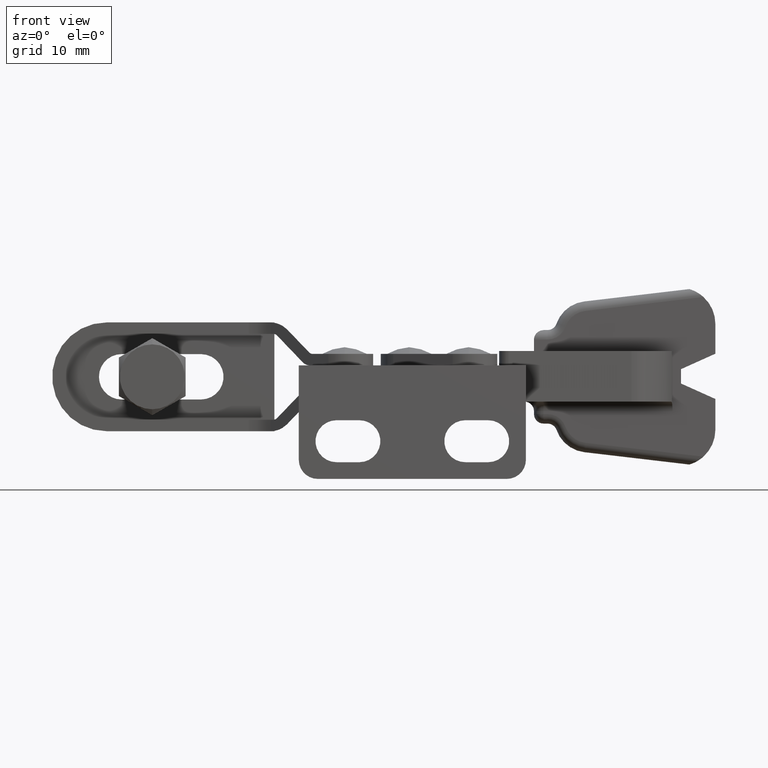
[diagram: clean part render]
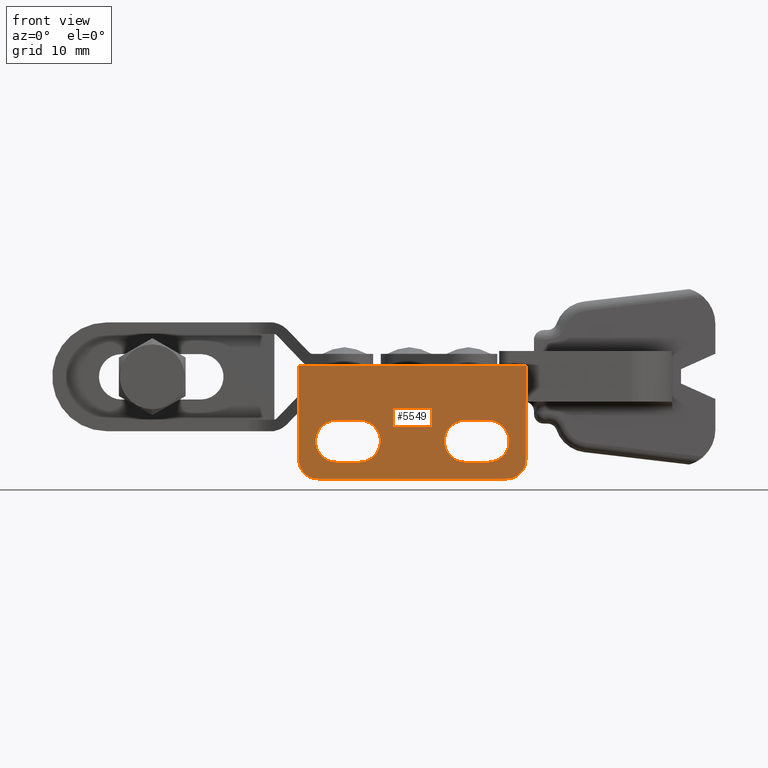
[diagram: same view with one face highlighted and labeled with its STEP entity id]
A machine part, front view. The second image highlights one B-rep face of the part: STEP entity #5549.
In plain terms, the highlighted planar face has unit normal (0, 1, 0).
Its self-contained STEP definition (entity closure, byte-faithful):
#78 = VECTOR ( 'NONE', #7228, 1000.000000000000000 ) ;
#91 = VERTEX_POINT ( 'NONE', #5983 ) ;
#112 = LINE ( 'NONE', #5927, #7935 ) ;
#158 = VERTEX_POINT ( 'NONE', #4937 ) ;
#201 = VECTOR ( 'NONE', #2499, 1000.000000000000000 ) ;
#335 = CARTESIAN_POINT ( 'NONE',  ( 21.80000000000002900, 0.0000000000000000000, -9.899999999999964800 ) ) ;
#357 = DIRECTION ( 'NONE',  ( -0.0000000000000000000, -1.000000000000000000, -0.0000000000000000000 ) ) ;
#374 = LINE ( 'NONE', #3626, #1916 ) ;
#516 = EDGE_LOOP ( 'NONE', ( #3639, #8170, #7009, #7804, #4515, #8892 ) ) ;
#679 = FACE_BOUND ( 'NONE', #2988, .T. ) ;
#1035 = EDGE_CURVE ( 'NONE', #91, #1453, #7302, .T. ) ;
#1099 = CIRCLE ( 'NONE', #1931, 2.000000000000001800 ) ;
#1200 = EDGE_CURVE ( 'NONE', #7277, #1899, #7648, .T. ) ;
#1294 = CIRCLE ( 'NONE', #7301, 2.200000000000007300 ) ;
#1350 = VECTOR ( 'NONE', #5022, 1000.000000000000000 ) ;
#1453 = VERTEX_POINT ( 'NONE', #3799 ) ;
#1479 = CIRCLE ( 'NONE', #4371, 2.200000000000007300 ) ;
#1576 = LINE ( 'NONE', #8398, #1350 ) ;
#1638 = CARTESIAN_POINT ( 'NONE',  ( 17.45000000000003500, 0.0000000000000000000, -5.749999999999976900 ) ) ;
#1683 = CARTESIAN_POINT ( 'NONE',  ( 17.45000000000006300, 0.0000000000000000000, -7.950000000000012600 ) ) ;
#1899 = VERTEX_POINT ( 'NONE', #7340 ) ;
#1916 = VECTOR ( 'NONE', #7466, 1000.000000000000000 ) ;
#1931 = AXIS2_PLACEMENT_3D ( 'NONE', #335, #2722, #9491 ) ;
#1993 = DIRECTION ( 'NONE',  ( -0.0000000000000000000, -1.000000000000000000, -0.0000000000000000000 ) ) ;
#2051 = PLANE ( 'NONE',  #8542 ) ;
#2096 = VECTOR ( 'NONE', #9116, 1000.000000000000000 ) ;
#2193 = DIRECTION ( 'NONE',  ( -0.0000000000000000000, -1.000000000000000000, -0.0000000000000000000 ) ) ;
#2204 = EDGE_CURVE ( 'NONE', #158, #7723, #1576, .T. ) ;
#2213 = CARTESIAN_POINT ( 'NONE',  ( 19.85000000000004800, 0.0000000000000000000, -7.950000000000012600 ) ) ;
#2219 = VERTEX_POINT ( 'NONE', #4690 ) ;
#2499 = DIRECTION ( 'NONE',  ( 3.154042683594206300E-015, 0.0000000000000000000, 1.000000000000000000 ) ) ;
#2547 = DIRECTION ( 'NONE',  ( 0.0000000000000000000, 0.0000000000000000000, -1.000000000000000000 ) ) ;
#2631 = CIRCLE ( 'NONE', #6396, 2.200000000000007300 ) ;
#2664 = EDGE_CURVE ( 'NONE', #3221, #7277, #1099, .T. ) ;
#2680 = CARTESIAN_POINT ( 'NONE',  ( 0.0000000000000000000, 0.0000000000000000000, 0.0000000000000000000 ) ) ;
#2722 = DIRECTION ( 'NONE',  ( -0.0000000000000000000, -1.000000000000000000, -0.0000000000000000000 ) ) ;
#2785 = DIRECTION ( 'NONE',  ( 0.0000000000000000000, 1.000000000000000000, 0.0000000000000000000 ) ) ;
#2796 = ORIENTED_EDGE ( 'NONE', *, *, #1035, .F. ) ;
#2845 = CARTESIAN_POINT ( 'NONE',  ( 3.949999999999967300, 0.0000000000000000000, -5.749999999999976900 ) ) ;
#2885 = FACE_OUTER_BOUND ( 'NONE', #516, .T. ) ;
#2913 = DIRECTION ( 'NONE',  ( 1.000000000000000000, 0.0000000000000000000, 0.0000000000000000000 ) ) ;
#2944 = DIRECTION ( 'NONE',  ( 0.0000000000000000000, 0.0000000000000000000, -1.000000000000000000 ) ) ;
#2980 = CARTESIAN_POINT ( 'NONE',  ( 17.45000000000003500, 0.0000000000000000000, -10.14999999999999100 ) ) ;
#2988 = EDGE_LOOP ( 'NONE', ( #8741, #2796, #8306, #8812 ) ) ;
#3021 = CARTESIAN_POINT ( 'NONE',  ( 1.999999999999988000, 0.0000000000000000000, -11.89999999999996700 ) ) ;
#3096 = CARTESIAN_POINT ( 'NONE',  ( 6.350000000000008500, 0.0000000000000000000, -10.15000000000002000 ) ) ;
#3105 = DIRECTION ( 'NONE',  ( -1.000000000000000000, -0.0000000000000000000, 0.0000000000000000000 ) ) ;
#3221 = VERTEX_POINT ( 'NONE', #8447 ) ;
#3626 = CARTESIAN_POINT ( 'NONE',  ( 3.949999999999967300, 0.0000000000000000000, -10.14999999999999100 ) ) ;
#3639 = ORIENTED_EDGE ( 'NONE', *, *, #9821, .T. ) ;
#3769 = VERTEX_POINT ( 'NONE', #7833 ) ;
#3799 = CARTESIAN_POINT ( 'NONE',  ( 3.949999999999967300, 0.0000000000000000000, -5.749999999999976900 ) ) ;
#3843 = EDGE_LOOP ( 'NONE', ( #4151, #5270, #7176, #8017 ) ) ;
#3844 = CIRCLE ( 'NONE', #9341, 2.200000000000007300 ) ;
#3973 = VECTOR ( 'NONE', #3105, 1000.000000000000000 ) ;
#4151 = ORIENTED_EDGE ( 'NONE', *, *, #7612, .F. ) ;
#4228 = CARTESIAN_POINT ( 'NONE',  ( 21.80000000000002900, 0.0000000000000000000, -9.899999999999964800 ) ) ;
#4280 = CIRCLE ( 'NONE', #4646, 2.000000000000001800 ) ;
#4371 = AXIS2_PLACEMENT_3D ( 'NONE', #1683, #6967, #2547 ) ;
#4515 = ORIENTED_EDGE ( 'NONE', *, *, #9878, .T. ) ;
#4567 = VERTEX_POINT ( 'NONE', #4776 ) ;
#4646 = AXIS2_PLACEMENT_3D ( 'NONE', #4806, #357, #5585 ) ;
#4690 = CARTESIAN_POINT ( 'NONE',  ( 19.85000000000004800, 0.0000000000000000000, -5.749999999999976900 ) ) ;
#4776 = CARTESIAN_POINT ( 'NONE',  ( 19.85000000000004800, 0.0000000000000000000, -10.15000000000002000 ) ) ;
#4806 = CARTESIAN_POINT ( 'NONE',  ( 1.999999999999988000, 0.0000000000000000000, -9.899999999999964800 ) ) ;
#4886 = CARTESIAN_POINT ( 'NONE',  ( -1.387778780781445700E-014, 0.0000000000000000000, -9.899999999999964800 ) ) ;
#4919 = CARTESIAN_POINT ( 'NONE',  ( 3.949999999999967300, 0.0000000000000000000, -10.14999999999999100 ) ) ;
#4937 = CARTESIAN_POINT ( 'NONE',  ( 0.0000000000000000000, 0.0000000000000000000, 0.0000000000000000000 ) ) ;
#5022 = DIRECTION ( 'NONE',  ( -1.401796748264091700E-015, 0.0000000000000000000, -1.000000000000000000 ) ) ;
#5109 = VECTOR ( 'NONE', #7381, 1000.000000000000000 ) ;
#5270 = ORIENTED_EDGE ( 'NONE', *, *, #8054, .F. ) ;
#5549 = ADVANCED_FACE ( 'NONE', ( #679, #2885, #6703 ), #2051, .F. ) ;
#5585 = DIRECTION ( 'NONE',  ( 0.0000000000000000000, 0.0000000000000000000, -1.000000000000000000 ) ) ;
#5927 = CARTESIAN_POINT ( 'NONE',  ( 1.999999999999988000, 0.0000000000000000000, -11.89999999999996700 ) ) ;
#5983 = CARTESIAN_POINT ( 'NONE',  ( 6.350000000000008500, 0.0000000000000000000, -5.749999999999976900 ) ) ;
#6396 = AXIS2_PLACEMENT_3D ( 'NONE', #6532, #1993, #7272 ) ;
#6532 = CARTESIAN_POINT ( 'NONE',  ( 3.949999999999995300, 0.0000000000000000000, -7.950000000000012600 ) ) ;
#6615 = EDGE_CURVE ( 'NONE', #1453, #7743, #2631, .T. ) ;
#6703 = FACE_BOUND ( 'NONE', #3843, .T. ) ;
#6724 = CARTESIAN_POINT ( 'NONE',  ( 6.350000000000008500, 0.0000000000000000000, -7.950000000000012600 ) ) ;
#6967 = DIRECTION ( 'NONE',  ( -0.0000000000000000000, -1.000000000000000000, -0.0000000000000000000 ) ) ;
#7009 = ORIENTED_EDGE ( 'NONE', *, *, #2664, .T. ) ;
#7176 = ORIENTED_EDGE ( 'NONE', *, *, #8466, .F. ) ;
#7228 = DIRECTION ( 'NONE',  ( -1.000000000000000000, -0.0000000000000000000, 0.0000000000000000000 ) ) ;
#7272 = DIRECTION ( 'NONE',  ( 0.0000000000000000000, 0.0000000000000000000, -1.000000000000000000 ) ) ;
#7277 = VERTEX_POINT ( 'NONE', #9085 ) ;
#7301 = AXIS2_PLACEMENT_3D ( 'NONE', #6724, #2193, #7477 ) ;
#7302 = LINE ( 'NONE', #2845, #5109 ) ;
#7340 = CARTESIAN_POINT ( 'NONE',  ( 23.80000000000006100, 0.0000000000000000000, 0.0000000000000000000 ) ) ;
#7381 = DIRECTION ( 'NONE',  ( -1.000000000000000000, -0.0000000000000000000, 0.0000000000000000000 ) ) ;
#7466 = DIRECTION ( 'NONE',  ( 1.000000000000000000, 0.0000000000000000000, 0.0000000000000000000 ) ) ;
#7477 = DIRECTION ( 'NONE',  ( 0.0000000000000000000, 0.0000000000000000000, -1.000000000000000000 ) ) ;
#7503 = DIRECTION ( 'NONE',  ( -0.0000000000000000000, -1.000000000000000000, -0.0000000000000000000 ) ) ;
#7529 = VERTEX_POINT ( 'NONE', #3021 ) ;
#7612 = EDGE_CURVE ( 'NONE', #3769, #8233, #1479, .T. ) ;
#7648 = LINE ( 'NONE', #9594, #201 ) ;
#7675 = LINE ( 'NONE', #2680, #78 ) ;
#7723 = VERTEX_POINT ( 'NONE', #4886 ) ;
#7743 = VERTEX_POINT ( 'NONE', #4919 ) ;
#7804 = ORIENTED_EDGE ( 'NONE', *, *, #1200, .T. ) ;
#7833 = CARTESIAN_POINT ( 'NONE',  ( 17.45000000000003500, 0.0000000000000000000, -5.749999999999976900 ) ) ;
#7935 = VECTOR ( 'NONE', #2913, 1000.000000000000000 ) ;
#8017 = ORIENTED_EDGE ( 'NONE', *, *, #9340, .F. ) ;
#8054 = EDGE_CURVE ( 'NONE', #2219, #3769, #8312, .T. ) ;
#8094 = DIRECTION ( 'NONE',  ( 0.0000000000000000000, 0.0000000000000000000, -1.000000000000000000 ) ) ;
#8170 = ORIENTED_EDGE ( 'NONE', *, *, #8444, .T. ) ;
#8233 = VERTEX_POINT ( 'NONE', #9469 ) ;
#8306 = ORIENTED_EDGE ( 'NONE', *, *, #9279, .F. ) ;
#8312 = LINE ( 'NONE', #1638, #3973 ) ;
#8384 = LINE ( 'NONE', #2980, #2096 ) ;
#8398 = CARTESIAN_POINT ( 'NONE',  ( -1.387778780781445700E-014, 0.0000000000000000000, -9.899999999999964800 ) ) ;
#8444 = EDGE_CURVE ( 'NONE', #7529, #3221, #112, .T. ) ;
#8447 = CARTESIAN_POINT ( 'NONE',  ( 21.80000000000002900, 0.0000000000000000000, -11.89999999999996700 ) ) ;
#8462 = EDGE_CURVE ( 'NONE', #7743, #8565, #374, .T. ) ;
#8466 = EDGE_CURVE ( 'NONE', #4567, #2219, #3844, .T. ) ;
#8542 = AXIS2_PLACEMENT_3D ( 'NONE', #4228, #2785, #8094 ) ;
#8565 = VERTEX_POINT ( 'NONE', #3096 ) ;
#8741 = ORIENTED_EDGE ( 'NONE', *, *, #6615, .F. ) ;
#8812 = ORIENTED_EDGE ( 'NONE', *, *, #8462, .F. ) ;
#8892 = ORIENTED_EDGE ( 'NONE', *, *, #2204, .T. ) ;
#9085 = CARTESIAN_POINT ( 'NONE',  ( 23.80000000000002900, 0.0000000000000000000, -9.899999999999964800 ) ) ;
#9116 = DIRECTION ( 'NONE',  ( 1.000000000000000000, 0.0000000000000000000, 0.0000000000000000000 ) ) ;
#9279 = EDGE_CURVE ( 'NONE', #8565, #91, #1294, .T. ) ;
#9340 = EDGE_CURVE ( 'NONE', #8233, #4567, #8384, .T. ) ;
#9341 = AXIS2_PLACEMENT_3D ( 'NONE', #2213, #7503, #2944 ) ;
#9469 = CARTESIAN_POINT ( 'NONE',  ( 17.45000000000003500, 0.0000000000000000000, -10.14999999999999100 ) ) ;
#9491 = DIRECTION ( 'NONE',  ( 0.0000000000000000000, 0.0000000000000000000, -1.000000000000000000 ) ) ;
#9594 = CARTESIAN_POINT ( 'NONE',  ( 23.80000000000002900, 0.0000000000000000000, -9.899999999999964800 ) ) ;
#9821 = EDGE_CURVE ( 'NONE', #7723, #7529, #4280, .T. ) ;
#9878 = EDGE_CURVE ( 'NONE', #1899, #158, #7675, .T. ) ;